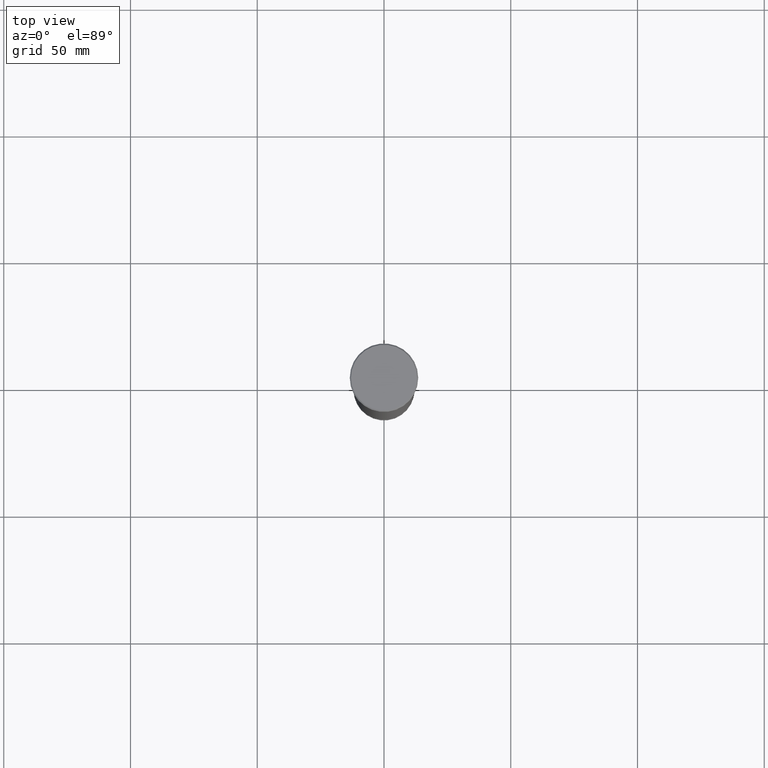
[diagram: clean part render]
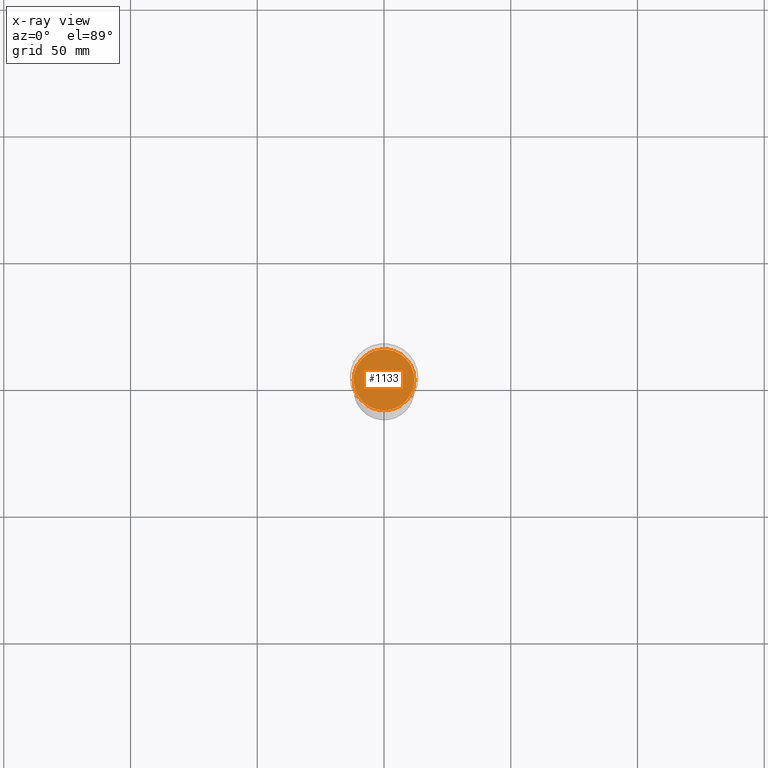
[diagram: x-ray — body ghosted, one internal face saturated and labeled with its STEP entity id]
A machine part, top view, then the same camera in x-ray: the body is ghosted and one INTERNAL B-rep face — a face not visible from any outside direction — is saturated and labeled: STEP entity #1133.
In plain terms, the highlighted planar face has unit normal (0, 0, -1).
Its self-contained STEP definition (entity closure, byte-faithful):
#67 = FACE_OUTER_BOUND ( 'NONE', #276, .T. ) ;
#153 = CIRCLE ( 'NONE', #308, 12.00000000000000178 ) ;
#168 = PLANE ( 'NONE',  #1001 ) ;
#172 = EDGE_CURVE ( 'NONE', #699, #278, #1000, .T. ) ;
#208 = DIRECTION ( 'NONE',  ( 0.000000000000000000, 0.000000000000000000, -1.000000000000000000 ) ) ;
#276 = EDGE_LOOP ( 'NONE', ( #470, #814 ) ) ;
#278 = VERTEX_POINT ( 'NONE', #389 ) ;
#298 = DIRECTION ( 'NONE',  ( -1.000000000000000000, 0.000000000000000000, 0.000000000000000000 ) ) ;
#308 = AXIS2_PLACEMENT_3D ( 'NONE', #649, #208, #298 ) ;
#339 = DIRECTION ( 'NONE',  ( 0.000000000000000000, 0.000000000000000000, -1.000000000000000000 ) ) ;
#389 = CARTESIAN_POINT ( 'NONE',  ( -12.00000000000000178, 1.469576158976824144E-15, -52.00000000000000000 ) ) ;
#402 = AXIS2_PLACEMENT_3D ( 'NONE', #430, #339, #992 ) ;
#430 = CARTESIAN_POINT ( 'NONE',  ( 0.000000000000000000, 0.000000000000000000, -52.00000000000000000 ) ) ;
#437 = CARTESIAN_POINT ( 'NONE',  ( 0.000000000000000000, 0.000000000000000000, -52.00000000000000000 ) ) ;
#470 = ORIENTED_EDGE ( 'NONE', *, *, #172, .T. ) ;
#538 = DIRECTION ( 'NONE',  ( -1.000000000000000000, 0.000000000000000000, -0.000000000000000000 ) ) ;
#649 = CARTESIAN_POINT ( 'NONE',  ( 0.000000000000000000, 0.000000000000000000, -52.00000000000000000 ) ) ;
#674 = EDGE_CURVE ( 'NONE', #278, #699, #153, .T. ) ;
#699 = VERTEX_POINT ( 'NONE', #1033 ) ;
#781 = DIRECTION ( 'NONE',  ( 0.000000000000000000, 0.000000000000000000, -1.000000000000000000 ) ) ;
#814 = ORIENTED_EDGE ( 'NONE', *, *, #674, .T. ) ;
#992 = DIRECTION ( 'NONE',  ( -1.000000000000000000, 0.000000000000000000, 0.000000000000000000 ) ) ;
#1000 = CIRCLE ( 'NONE', #402, 12.00000000000000178 ) ;
#1001 = AXIS2_PLACEMENT_3D ( 'NONE', #437, #781, #538 ) ;
#1033 = CARTESIAN_POINT ( 'NONE',  ( 12.00000000000000178, 0.000000000000000000, -52.00000000000000000 ) ) ;
#1133 = ADVANCED_FACE ( 'NONE', ( #67 ), #168, .T. ) ;